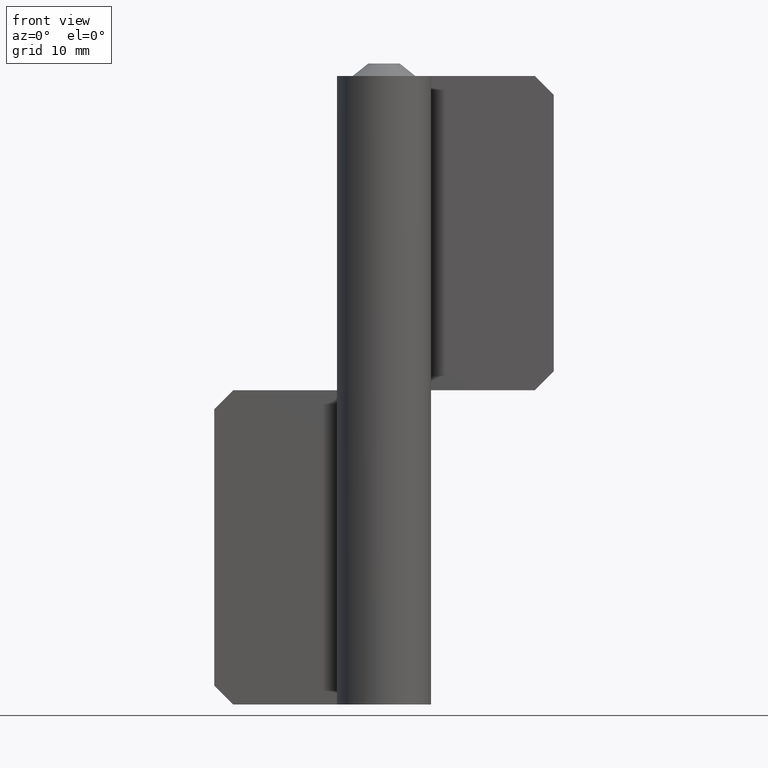
[diagram: clean part render]
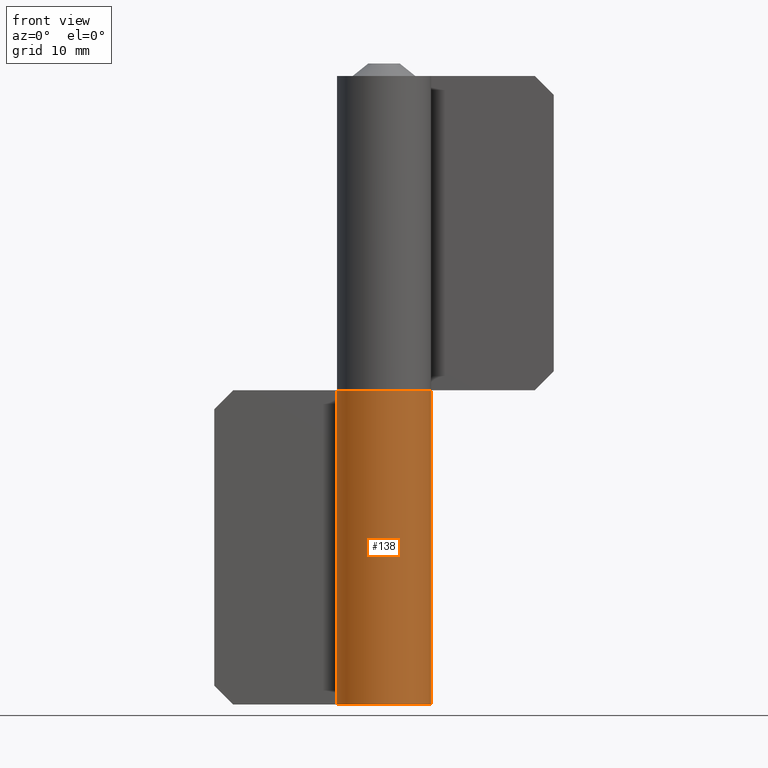
[diagram: same view with one face highlighted and labeled with its STEP entity id]
A machine part, front view. The second image highlights one B-rep face of the part: STEP entity #138.
In plain terms, the highlighted cylindrical surface (partial cylindrical patch) has radius 7.5 mm, axis along (0, 0, -1).
Its self-contained STEP definition (entity closure, byte-faithful):
#138=ADVANCED_FACE('',(#400),#399,.T.);
#399=CYLINDRICAL_SURFACE('',#566,7.50000000000E+000);
#400=FACE_OUTER_BOUND('',#567,.T.);
#563=CARTESIAN_POINT('',(0.00000000000E+000,0.00000000000E+000,-1.00000000000E+003));
#564=DIRECTION('',(-0.00000000000E+000,0.00000000000E+000,-1.00000000000E+000));
#565=DIRECTION('',(-4.14693242656E-001,9.09961270877E-001,0.00000000000E+000));
#566=AXIS2_PLACEMENT_3D('',#563,#564,#565);
#567=EDGE_LOOP('',(#694,#695,#696,#697));
#694=ORIENTED_EDGE('',*,*,#759,.F.);
#695=ORIENTED_EDGE('',*,*,#762,.F.);
#696=ORIENTED_EDGE('',*,*,#753,.T.);
#697=ORIENTED_EDGE('',*,*,#751,.T.);
#751=EDGE_CURVE('',#1103,#1110,#1117,.T.);
#753=EDGE_CURVE('',#1130,#1103,#1131,.T.);
#759=EDGE_CURVE('',#1164,#1110,#1171,.T.);
#762=EDGE_CURVE('',#1130,#1164,#1189,.T.);
#1103=VERTEX_POINT('',#1391);
#1110=VERTEX_POINT('',#1395);
#1117=LINE('',#1399,#1400);
#1130=VERTEX_POINT('',#1406);
#1131=CIRCLE('',#1410,7.50000000000E+000);
#1164=VERTEX_POINT('',#1428);
#1171=CIRCLE('',#1435,7.50000000000E+000);
#1189=LINE('',#1442,#1443);
#1391=CARTESIAN_POINT('',(0.00000000000E+000,7.50000000000E+000,-5.00000000000E+001));
#1395=CARTESIAN_POINT('',(0.00000000000E+000,7.50000000000E+000,0.00000000000E+000));
#1399=CARTESIAN_POINT('',(0.00000000000E+000,7.50000000000E+000,-5.00000000000E+001));
#1400=VECTOR('',#1401,5.00000000000E+001);
#1401=DIRECTION('',(0.00000000000E+000,0.00000000000E+000,1.00000000000E+000));
#1406=CARTESIAN_POINT('',(-5.59104252323E+000,4.99902425514E+000,-5.00000000000E+001));
#1407=CARTESIAN_POINT('',(0.00000000000E+000,0.00000000000E+000,-5.00000000000E+001));
#1408=DIRECTION('',(0.00000000000E+000,-0.00000000000E+000,1.00000000000E+000));
#1409=DIRECTION('',(-1.83690953073E-016,1.00000000000E+000,0.00000000000E+000));
#1410=AXIS2_PLACEMENT_3D('',#1407,#1408,#1409);
#1428=CARTESIAN_POINT('',(-5.59104252323E+000,4.99902425514E+000,0.00000000000E+000));
#1432=CARTESIAN_POINT('',(0.00000000000E+000,0.00000000000E+000,0.00000000000E+000));
#1433=DIRECTION('',(0.00000000000E+000,-0.00000000000E+000,1.00000000000E+000));
#1434=DIRECTION('',(-1.83690953073E-016,1.00000000000E+000,0.00000000000E+000));
#1435=AXIS2_PLACEMENT_3D('',#1432,#1433,#1434);
#1442=CARTESIAN_POINT('',(-5.59104252323E+000,4.99902425514E+000,-5.00000000000E+001));
#1443=VECTOR('',#1444,5.00000000000E+001);
#1444=DIRECTION('',(0.00000000000E+000,0.00000000000E+000,1.00000000000E+000));